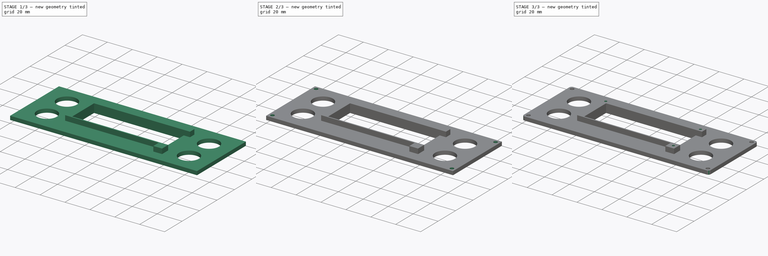
[diagram: build sequence overview — one tinted view per stage of 3, left to right]
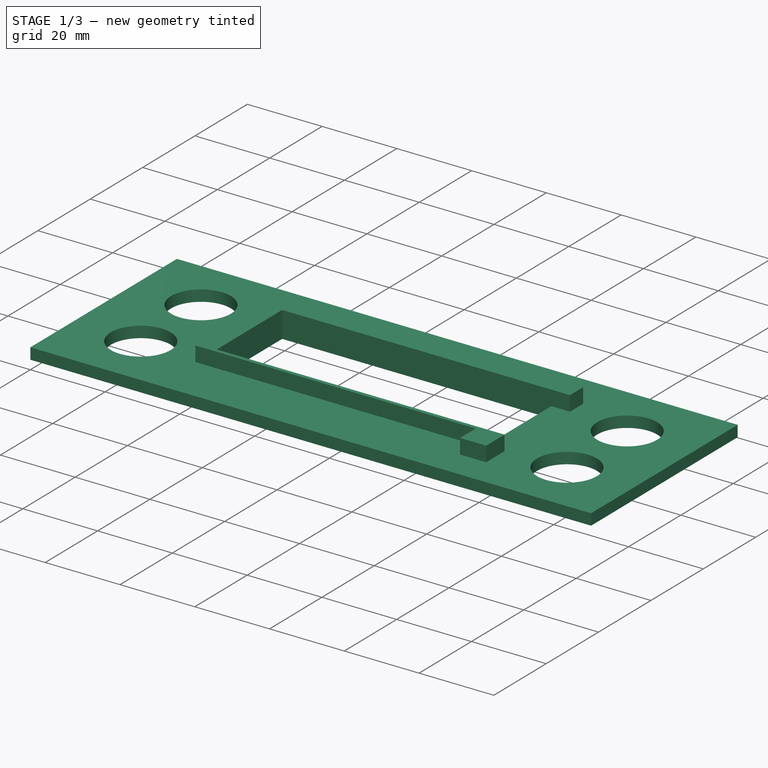
[diagram: stage 1 of 3 — iso view after this stage's code; geometry added in this stage tinted green]
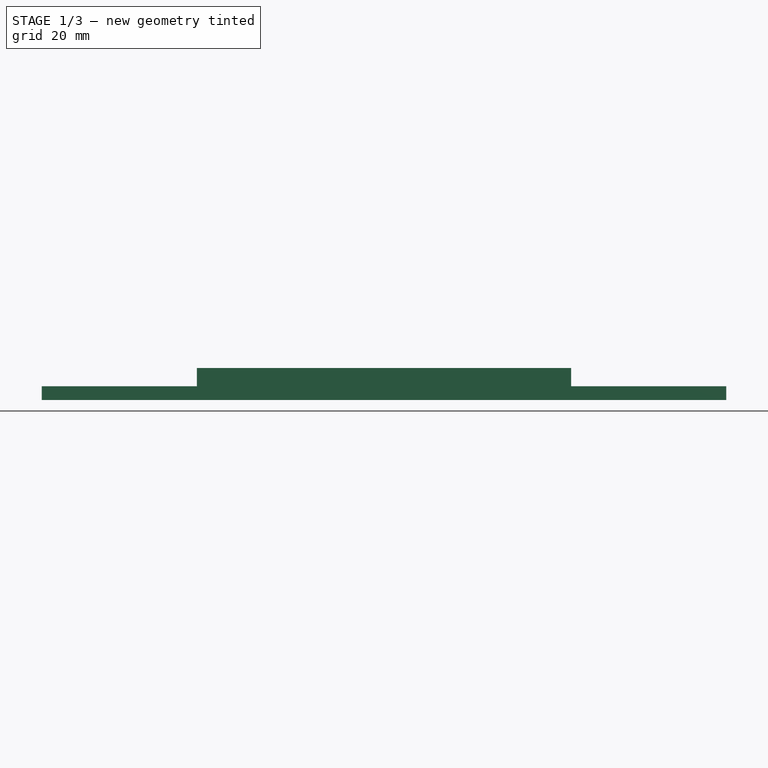
[diagram: stage 1 of 3 — front view after this stage's code; geometry added in this stage tinted green]
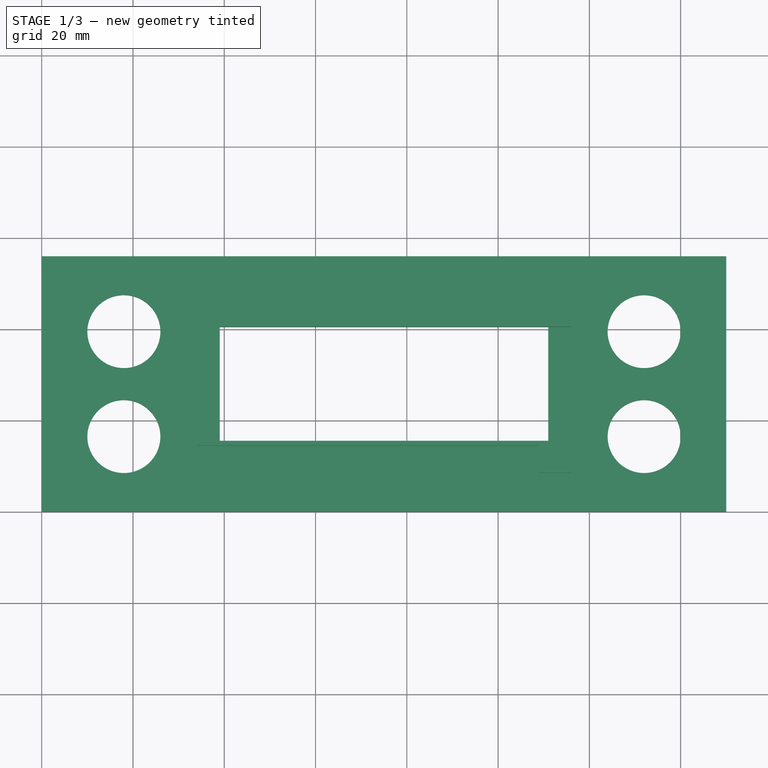
[diagram: stage 1 of 3 — top view after this stage's code; geometry added in this stage tinted green]
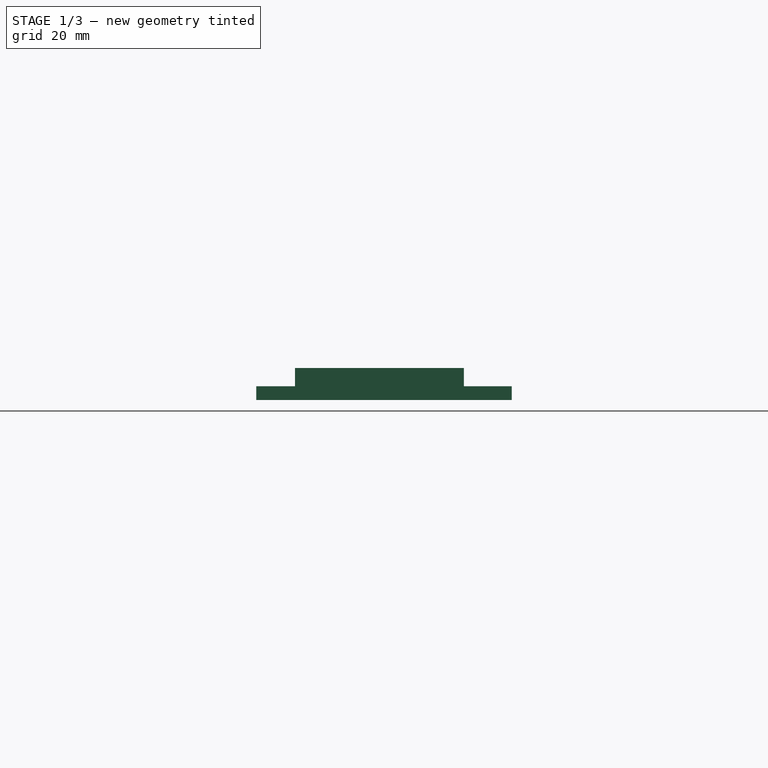
[diagram: stage 1 of 3 — right view after this stage's code; geometry added in this stage tinted green]
FCSTD DOCUMENT  (FreeCAD 0.21R33668 +26 (Git))
Label: Stopuhr-V04
License: All rights reserved
LicenseURL: https://en.wikipedia.org/wiki/All_rights_reserved
objects: Sketcher::SketchObject×4, PartDesign::Pad×2, PartDesign::Pocket×2, PartDesign::Fillet×1, PartDesign::Body×1
note: 15 computed .brp shape members not serialized (recipe doc carries the construction recipe); baked Part::Feature solids carry a one-line shape summary decoded from their .brp

FEATURE [Sketcher::SketchObject] Sketch
  FullyConstrained = true
  MapMode = 5
  Support = -> [XY_Plane]
  sketch-geometry (24):
    g0: LineSegment StartX=0 StartY=0 StartZ=0 EndX=150 EndY=0 EndZ=0
    g1: LineSegment StartX=150 StartY=0 StartZ=0 EndX=150 EndY=56 EndZ=0
    g2: LineSegment StartX=150 StartY=56 StartZ=0 EndX=0 EndY=56 EndZ=0
    g3: LineSegment StartX=0 StartY=56 StartZ=0 EndX=0 EndY=0 EndZ=0
    g4: LineSegment StartX=39 StartY=15.5 StartZ=0 EndX=111 EndY=15.5 EndZ=0
    g5: LineSegment StartX=111 StartY=15.5 StartZ=0 EndX=111 EndY=40.5 EndZ=0
    g6: LineSegment StartX=111 StartY=40.5 StartZ=0 EndX=39 EndY=40.5 EndZ=0
    g7: LineSegment StartX=39 StartY=40.5 StartZ=0 EndX=39 EndY=15.5 EndZ=0
    g8: LineSegment StartX=111 StartY=40.5 StartZ=0 EndX=150 EndY=40.5 EndZ=0
    g9: LineSegment StartX=39 StartY=40.5 StartZ=0 EndX=39 EndY=56 EndZ=0
    g10: LineSegment StartX=39 StartY=15.5 StartZ=0 EndX=39 EndY=0 EndZ=0
    g11: Circle CenterX=18 CenterY=16.5 CenterZ=0 NormalX=0 NormalY=0 NormalZ=1 AngleXU=0 Radius=8
    g12: Circle CenterX=18 CenterY=39.5 CenterZ=0 NormalX=0 NormalY=0 NormalZ=1 AngleXU=0 Radius=8
    g13: Circle CenterX=132 CenterY=16.5 CenterZ=0 NormalX=0 NormalY=0 NormalZ=1 AngleXU=0 Radius=8
    g14: LineSegment StartX=18 StartY=39.5 StartZ=0 EndX=18 EndY=16.5 EndZ=0
    g15: LineSegment StartX=132 StartY=39.5 StartZ=0 EndX=132 EndY=16.5 EndZ=0
    g16: Circle CenterX=132 CenterY=39.5 CenterZ=0 NormalX=0 NormalY=0 NormalZ=1 AngleXU=0 Radius=8
    g17: LineSegment StartX=18 StartY=39.5 StartZ=0 EndX=18 EndY=56 EndZ=0
    g18: LineSegment StartX=18 StartY=16.5 StartZ=0 EndX=18 EndY=0 EndZ=0
    g19: LineSegment StartX=18 StartY=16.5 StartZ=0 EndX=132 EndY=16.5 EndZ=0
    g20: LineSegment StartX=18 StartY=39.5 StartZ=0 EndX=0 EndY=39.5 EndZ=0
    g21: LineSegment StartX=132 StartY=39.5 StartZ=0 EndX=150 EndY=39.5 EndZ=0
    g22: LineSegment StartX=39 StartY=40.5 StartZ=0 EndX=0 EndY=40.5 EndZ=0
    g23: LineSegment StartX=18 StartY=39.5 StartZ=0 EndX=39 EndY=39.5 EndZ=0
  constraints (68):
    c: Coincident(g0,g1)
    c: Coincident(g1,g2)
    c: Coincident(g2,g3)
    c: Coincident(g3,g0)
    c: Horizontal(g0)
    c: Horizontal(g2)
    c: Vertical(g1)
    c: Vertical(g3)
    c: Coincident(g0,g-1)
    c: DistanceY(g1,g1) = 56
    c: DistanceX(g2,g2) = 150
    c: Coincident(g4,g5)
    c: Coincident(g5,g6)
    c: Coincident(g6,g7)
    c: Coincident(g7,g4)
    c: Horizontal(g4)
    c: Horizontal(g6)
    c: Vertical(g5)
    c: Vertical(g7)
    c: DistanceY(g5,g5) = 25
    c: DistanceX(g6,g6) = 72
    c: Coincident(g8,g5)
    c: PointOnObject(g8,g1)
    c: Horizontal(g8)
    c: Coincident(g9,g6)
    c: PointOnObject(g9,g2)
    c: Vertical(g9)
    c: Coincident(g10,g4)
    c: PointOnObject(g10,g0)
    c: Vertical(g10)
    c: Equal(g9,g10)
    c: Radius(g11) = 8
    c: Equal(g12,g11)
    c: Coincident(g14,g12)
    c: Coincident(g14,g11)
    c: Coincident(g15,g13)
    c: Vertical(g15)
    c: Vertical(g14)
    c: Equal(g14,g15)
    c: Equal(g16,g11)
    c: Coincident(g16,g15)
    c: DistanceY(g14,g14) = 23
    c: Coincident(g17,g12)
    c: PointOnObject(g17,g2)
    c: Vertical(g17)
    c: Coincident(g18,g11)
    c: PointOnObject(g18,g0)
    c: Vertical(g18)
    c: Equal(g18,g17)
    c: Coincident(g19,g11)
    c: Coincident(g19,g13)
    c: Horizontal(g19)
    c: Equal(g13,g11)
    c: Coincident(g20,g12)
    c: PointOnObject(g20,g3)
    c: Horizontal(g20)
    c: Coincident(g21,g16)
    c: PointOnObject(g21,g1)
    c: Horizontal(g21)
    c: Equal(g21,g20)
    c: Coincident(g22,g6)
    c: PointOnObject(g22,g3)
    c: Horizontal(g22)
    c: Equal(g8,g22)
    c: Coincident(g23,g12)
    c: PointOnObject(g23,g7)
    c: Horizontal(g23)
    c: DistanceX(g23,g23) = 21
FEATURE [PartDesign::Pad] Pad
  Direction = (0,0,1)
  Length = 3
  Length2 = 10
  Profile = -> Sketch
  ReferenceAxis = -> Sketch [N_Axis]
  Type = 0
FEATURE [Sketcher::SketchObject] Sketch001
  ExternalGeometry = -> [Pad]
  FullyConstrained = true
  MapMode = 5
  Placement = pos=(0,0,3) rot=(0,0,1;0rad)
  Support = -> [Pad]
  sketch-geometry (13):
    g0: LineSegment StartX=39 StartY=15.5 StartZ=0 EndX=111 EndY=15.5 EndZ=0
    g1: LineSegment StartX=39 StartY=40.5 StartZ=0 EndX=111 EndY=40.5 EndZ=0
    g2: LineSegment StartX=111 StartY=45.5 StartZ=0 EndX=34 EndY=45.5 EndZ=0
    g3: LineSegment StartX=34 StartY=14.5 StartZ=0 EndX=34 EndY=45.5 EndZ=0
    g4: LineSegment StartX=39 StartY=40.5 StartZ=0 EndX=39 EndY=15.5 EndZ=0
    g5: LineSegment StartX=109 StartY=14.5 StartZ=0 EndX=34 EndY=14.5 EndZ=0
    g6: LineSegment StartX=111 StartY=15.5 StartZ=0 EndX=116 EndY=15.5 EndZ=0
    g7: LineSegment StartX=109 StartY=8.5 StartZ=0 EndX=109 EndY=14.5 EndZ=0
    g8: LineSegment StartX=111 StartY=45.5 StartZ=0 EndX=116 EndY=45.5 EndZ=0
    g9: LineSegment StartX=116 StartY=45.5 StartZ=0 EndX=116 EndY=40.5 EndZ=0
    g10: LineSegment StartX=116 StartY=40.5 StartZ=0 EndX=111 EndY=40.5 EndZ=0
    g11: LineSegment StartX=109 StartY=8.5 StartZ=0 EndX=116 EndY=8.5 EndZ=0
    g12: LineSegment StartX=116 StartY=15.5 StartZ=0 EndX=116 EndY=8.5 EndZ=0
  constraints (35):
    c: Horizontal(g2)
    c: Coincident(g1,g-3)
    c: Coincident(g-4,g1)
    c: Vertical(g3)
    c: DistanceX(g3,g4) = 5
    c: Coincident(g0,g-4)
    c: Horizontal(g5)
    c: Coincident(g3,g5)
    c: DistanceY(g5,g0) = 1
    c: DistanceY(g1,g2) = 5
    c: Coincident(g3,g2)
    c: Coincident(g1,g4)
    c: Coincident(g4,g0)
    c: Coincident(g0,g-3)
    c: Horizontal(g6)
    c: Coincident(g6,g0)
    c: Coincident(g7,g5)
    c: Vertical(g7)
    c: Coincident(g8,g9)
    c: Coincident(g9,g10)
    c: Horizontal(g8)
    c: Horizontal(g10)
    c: Vertical(g9)
    c: Coincident(g8,g2)
    c: Coincident(g10,g1)
    c: Equal(g8,g9)
    c: Equal(g9,g10)
    c: Coincident(g11,g7)
    c: Horizontal(g11)
    c: Coincident(g12,g6)
    c: Coincident(g12,g11)
    c: Vertical(g12)
    c: Equal(g12,g11)
    c: DistanceX(g5,g0) = 2
    c: Vertical(g6,g9)
FEATURE [PartDesign::Pad] Pad001
  BaseFeature = -> Pad
  Direction = (0,0,1)
  Length = 4
  Length2 = 10
  Profile = -> Sketch001
  ReferenceAxis = -> Sketch001 [N_Axis]
  Type = 0
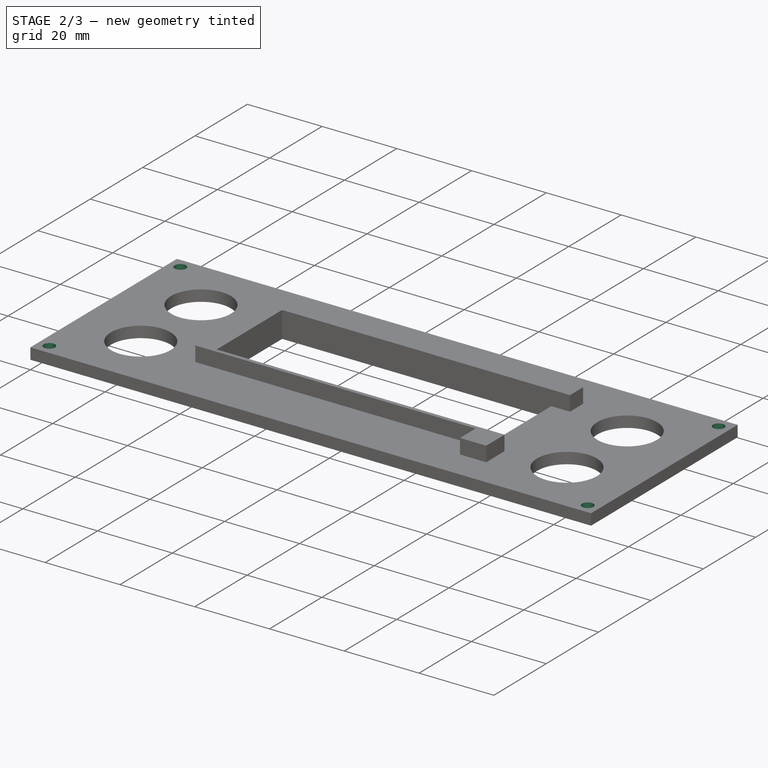
[diagram: stage 2 of 3 — iso view after this stage's code; geometry added in this stage tinted green]
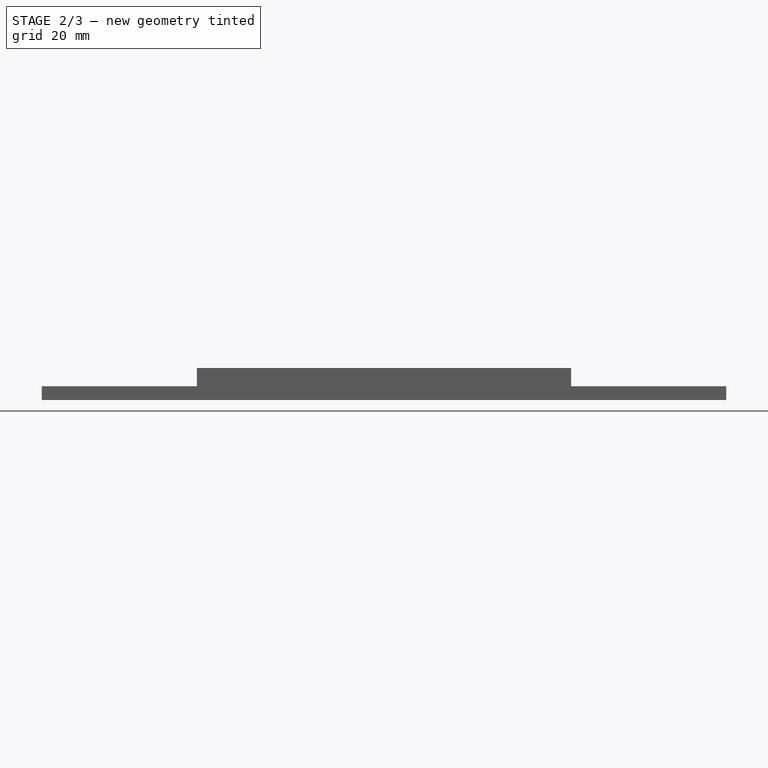
[diagram: stage 2 of 3 — front view after this stage's code; geometry added in this stage tinted green]
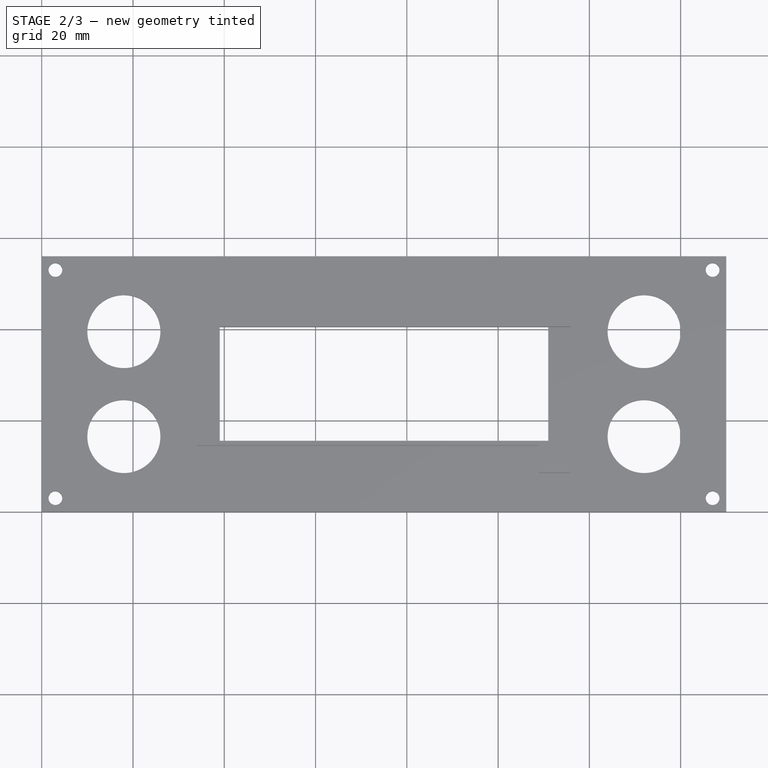
[diagram: stage 2 of 3 — top view after this stage's code; geometry added in this stage tinted green]
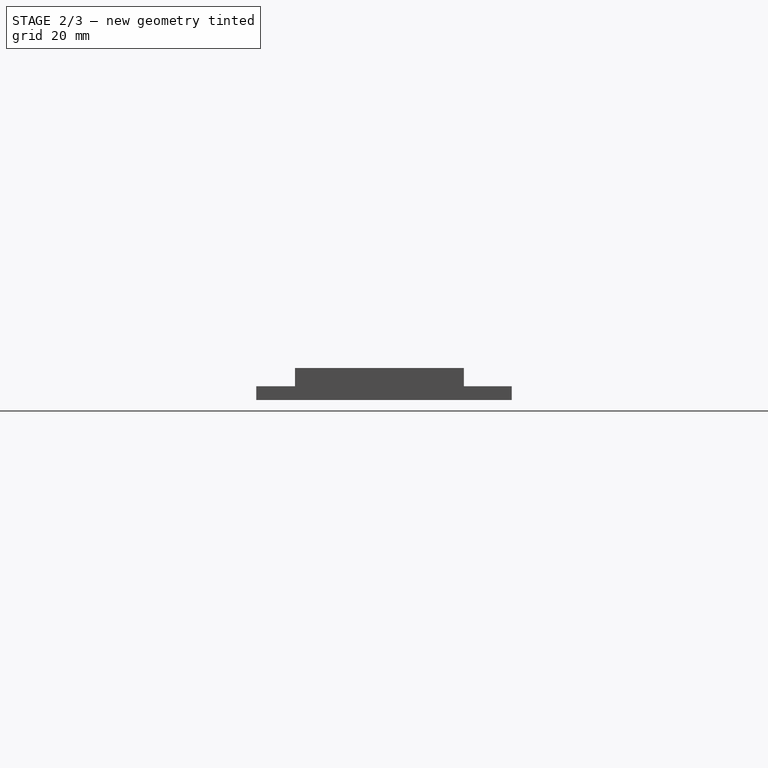
[diagram: stage 2 of 3 — right view after this stage's code; geometry added in this stage tinted green]
FEATURE [Sketcher::SketchObject] Sketch002
  ExternalGeometry = -> [Pad001]
  FullyConstrained = true
  MapMode = 5
  Placement = pos=(0,0,3) rot=(0,0,1;0rad)
  Support = -> [Pad001]
  sketch-geometry (20):
    g0: LineSegment StartX=0 StartY=56 StartZ=0 EndX=3 EndY=56 EndZ=0
    g1: LineSegment StartX=3 StartY=56 StartZ=0 EndX=3 EndY=53 EndZ=0
    g2: LineSegment StartX=3 StartY=53 StartZ=0 EndX=0 EndY=53 EndZ=0
    g3: LineSegment StartX=0 StartY=53 StartZ=0 EndX=0 EndY=56 EndZ=0
    g4: Circle CenterX=3 CenterY=53 CenterZ=0 NormalX=0 NormalY=0 NormalZ=1 AngleXU=0 Radius=1.5
    g5: LineSegment StartX=150 StartY=56 StartZ=0 EndX=147 EndY=56 EndZ=0
    g6: LineSegment StartX=147 StartY=56 StartZ=0 EndX=147 EndY=53 EndZ=0
    g7: LineSegment StartX=147 StartY=53 StartZ=0 EndX=150 EndY=53 EndZ=0
    g8: LineSegment StartX=150 StartY=53 StartZ=0 EndX=150 EndY=56 EndZ=0
    g9: Circle CenterX=147 CenterY=53 CenterZ=0 NormalX=0 NormalY=0 NormalZ=1 AngleXU=0 Radius=1.5
    g10: LineSegment StartX=0 StartY=0 StartZ=0 EndX=3 EndY=0 EndZ=0
    g11: LineSegment StartX=3 StartY=0 StartZ=0 EndX=3 EndY=3 EndZ=0
    g12: LineSegment StartX=3 StartY=3 StartZ=0 EndX=0 EndY=3 EndZ=0
    g13: LineSegment StartX=0 StartY=3 StartZ=0 EndX=0 EndY=0 EndZ=0
    g14: Circle CenterX=3 CenterY=3 CenterZ=0 NormalX=0 NormalY=0 NormalZ=1 AngleXU=0 Radius=1.5
    g15: LineSegment StartX=150 StartY=0 StartZ=0 EndX=147 EndY=0 EndZ=0
    g16: LineSegment StartX=147 StartY=0 StartZ=0 EndX=147 EndY=3 EndZ=0
    g17: LineSegment StartX=147 StartY=3 StartZ=0 EndX=150 EndY=3 EndZ=0
    g18: LineSegment StartX=150 StartY=3 StartZ=0 EndX=150 EndY=0 EndZ=0
    g19: Circle CenterX=147 CenterY=3 CenterZ=0 NormalX=0 NormalY=0 NormalZ=1 AngleXU=0 Radius=1.5
  constraints (52):
    c: Coincident(g0,g1)
    c: Coincident(g1,g2)
    c: Coincident(g2,g3)
    c: Coincident(g3,g0)
    c: Horizontal(g0)
    c: Horizontal(g2)
    c: Vertical(g1)
    c: Vertical(g3)
    c: Coincident(g0,g-3)
    c: Coincident(g4,g1)
    c: Diameter(g4) = 3
    c: Equal(g0,g3)
    c: DistanceX(g0,g0) = 3
    c: Coincident(g5,g6)
    c: Coincident(g6,g7)
    c: Coincident(g7,g8)
    c: Coincident(g8,g5)
    c: Horizontal(g5)
    c: Horizontal(g7)
    c: Vertical(g6)
    c: Vertical(g8)
    c: Coincident(g5,g-3)
    c: Equal(g7,g6)
    c: Equal(g5,g0)
    c: Coincident(g9,g6)
    c: Equal(g9,g4)
    c: Coincident(g10,g11)
    c: Coincident(g11,g12)
    c: Coincident(g12,g13)
    c: Coincident(g13,g10)
    c: Horizontal(g10)
    c: Horizontal(g12)
    c: Vertical(g11)
    c: Vertical(g13)
    c: Coincident(g10,g-4)
    c: Equal(g12,g11)
    c: Equal(g10,g0)
    c: Coincident(g14,g11)
    c: Equal(g14,g4)
    c: Coincident(g15,g16)
    c: Coincident(g16,g17)
    c: Coincident(g17,g18)
    c: Coincident(g18,g15)
    c: Horizontal(g15)
    c: Horizontal(g17)
    c: Vertical(g16)
    c: Vertical(g18)
    c: Coincident(g15,g-4)
    c: Equal(g17,g16)
    c: Equal(g15,g0)
    c: Coincident(g19,g16)
    c: Equal(g19,g4)
FEATURE [PartDesign::Pocket] Pocket
  BaseFeature = -> Pad001
  Direction = (0,0,-1)
  Length = 5
  Length2 = 5
  Profile = -> Sketch002
  ReferenceAxis = -> Sketch002 [N_Axis]
  Type = 0
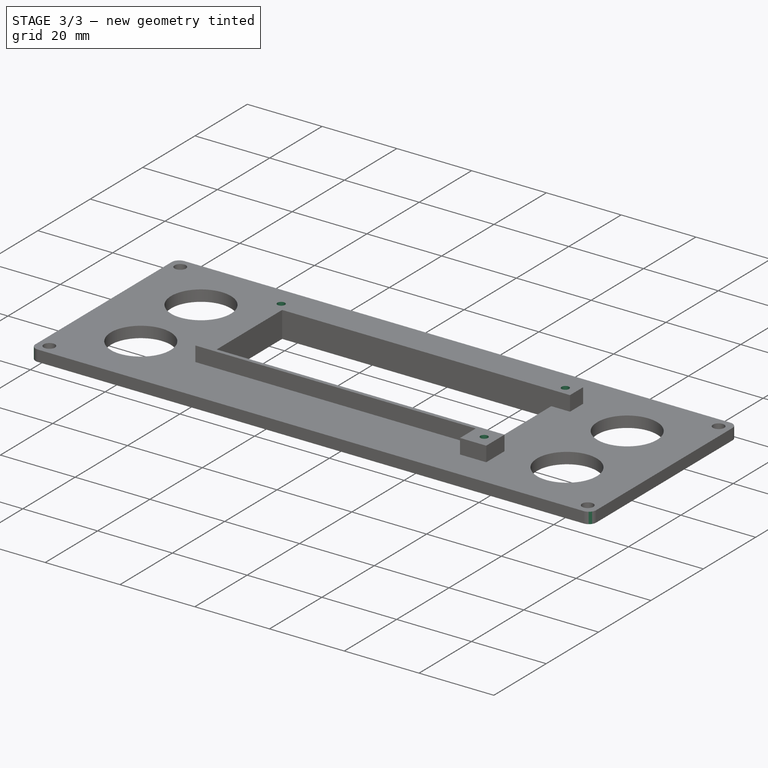
[diagram: stage 3 of 3 — iso view after this stage's code; geometry added in this stage tinted green]
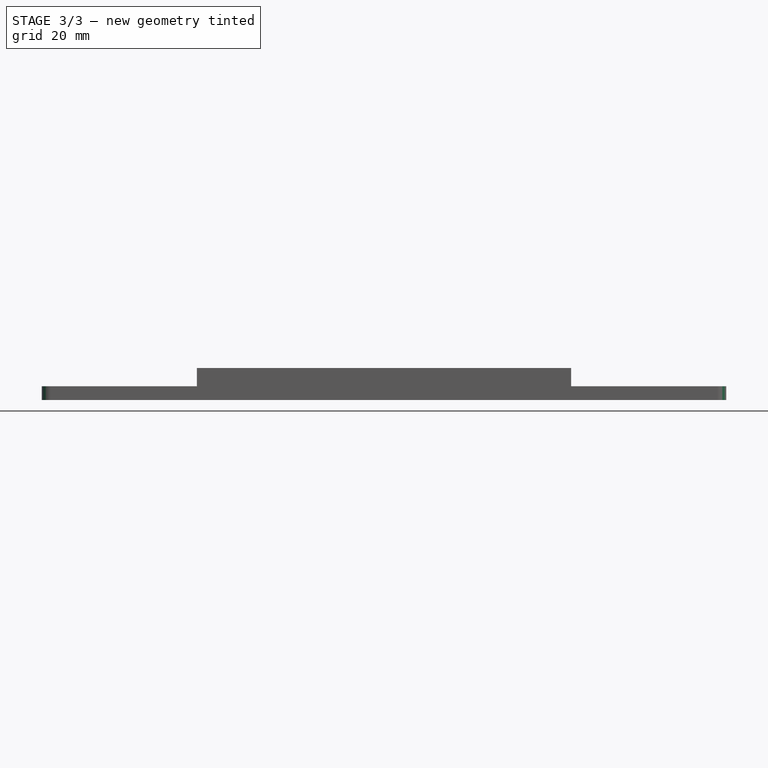
[diagram: stage 3 of 3 — front view after this stage's code; geometry added in this stage tinted green]
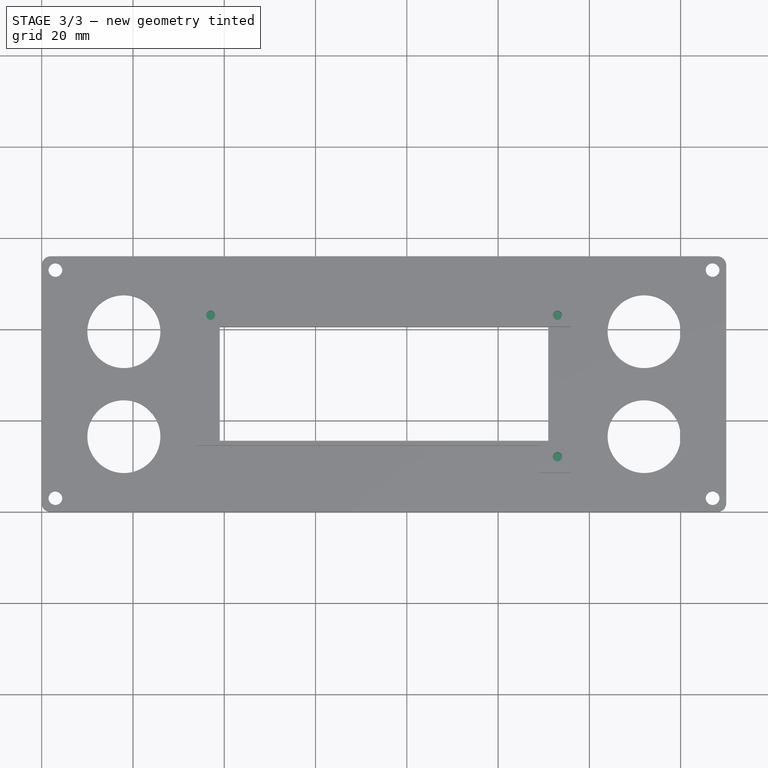
[diagram: stage 3 of 3 — top view after this stage's code; geometry added in this stage tinted green]
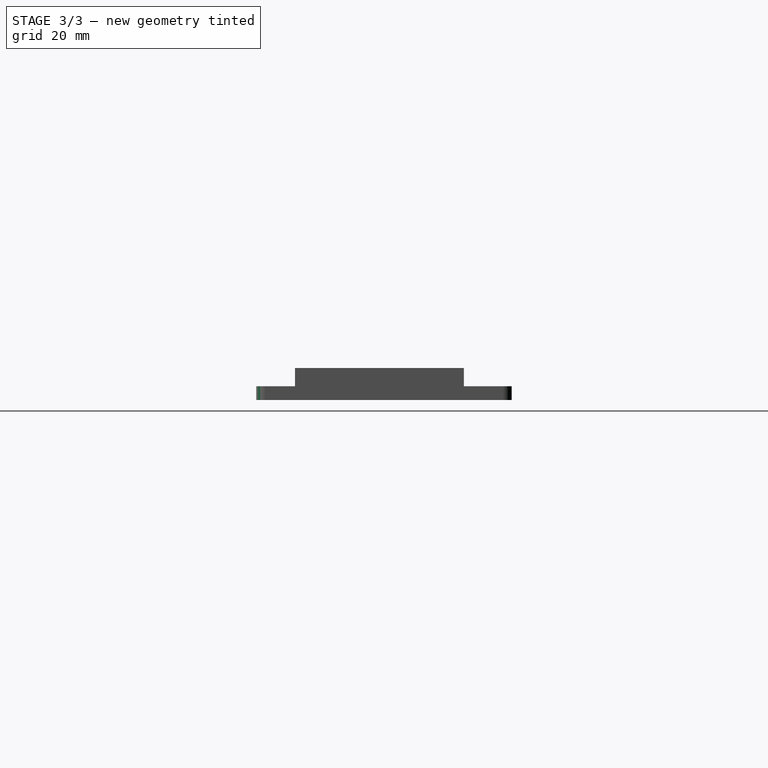
[diagram: stage 3 of 3 — right view after this stage's code; geometry added in this stage tinted green]
FEATURE [Sketcher::SketchObject] Sketch003
  ExternalGeometry = -> [Pocket]
  FullyConstrained = true
  MapMode = 5
  Placement = pos=(0,0,7) rot=(0,0,1;0rad)
  Support = -> [Pocket]
  sketch-geometry (3):
    g0: Circle CenterX=37 CenterY=43 CenterZ=0 NormalX=0 NormalY=0 NormalZ=1 AngleXU=0 Radius=1
    g1: Circle CenterX=113 CenterY=43 CenterZ=0 NormalX=0 NormalY=0 NormalZ=1 AngleXU=0 Radius=1
    g2: Circle CenterX=113 CenterY=12 CenterZ=0 NormalX=0 NormalY=0 NormalZ=1 AngleXU=0 Radius=1
  constraints (9):
    c: Equal(g1,g2)
    c: Equal(g2,g0)
    c: DistanceX(g-3,g0) = 3
    c: DistanceY(g0,g-3) = 2.5
    c: Diameter(g0) = 2
    c: Horizontal(g0,g1)
    c: DistanceX(g1,g-4) = 3
    c: Vertical(g1,g2)
    c: DistanceY(g2,g-5) = 3.5
FEATURE [PartDesign::Pocket] Pocket001
  BaseFeature = -> Pocket
  Direction = (0,0,-1)
  Length = 5
  Length2 = 5
  Profile = -> Sketch003
  ReferenceAxis = -> Sketch003 [N_Axis]
  Type = 0
FEATURE [PartDesign::Fillet] Fillet
  Base = -> Pocket001 [Edge1,Edge5,Edge2,Edge8]
  BaseFeature = -> Pocket001
  Radius = 2
  SupportTransform = false
  UseAllEdges = false
FEATURE [PartDesign::Body] Body  label="Körper"
  Group = -> [Sketch,Pad,Sketch001,Pad001,Sketch002,Pocket,Sketch003,Pocket001,Fillet]
  Origin = -> Origin
  Tip = -> Fillet
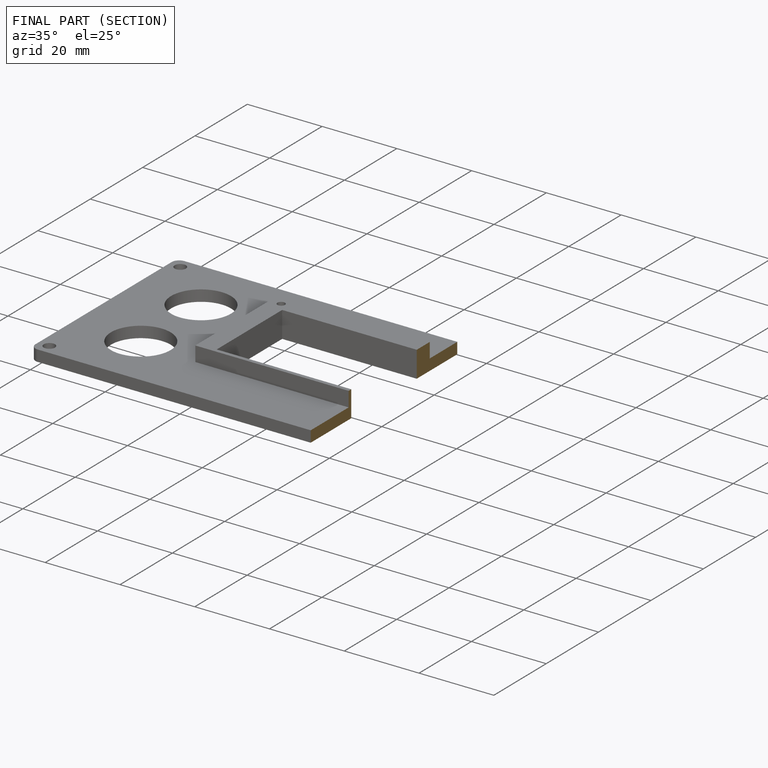
[diagram: finished part — half-section view (interior)]
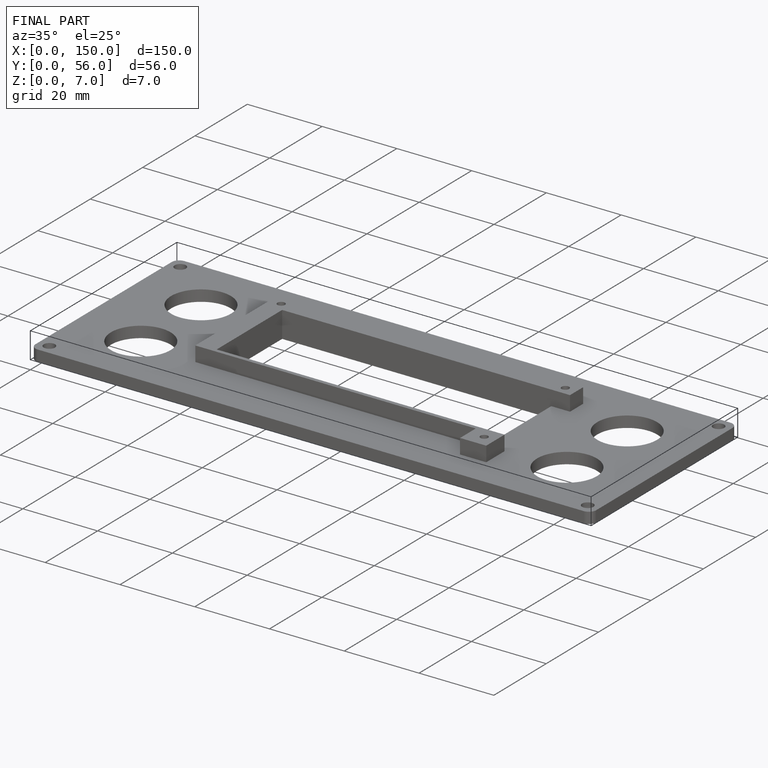
[diagram: finished part — iso view with bounding-box wireframe]
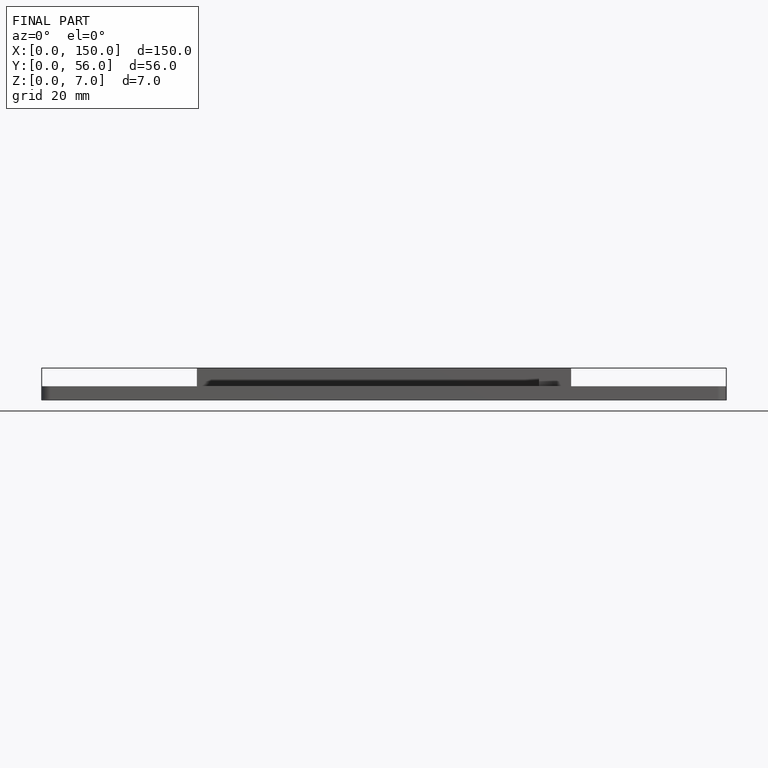
[diagram: finished part — front view with bounding-box wireframe]
